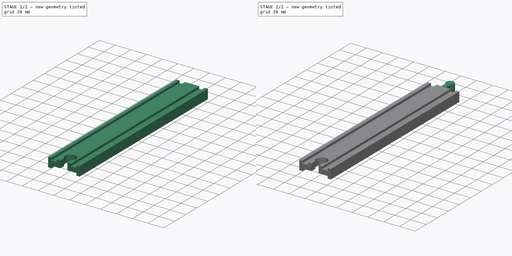
[diagram: build sequence overview — one tinted view per stage of 2, left to right]
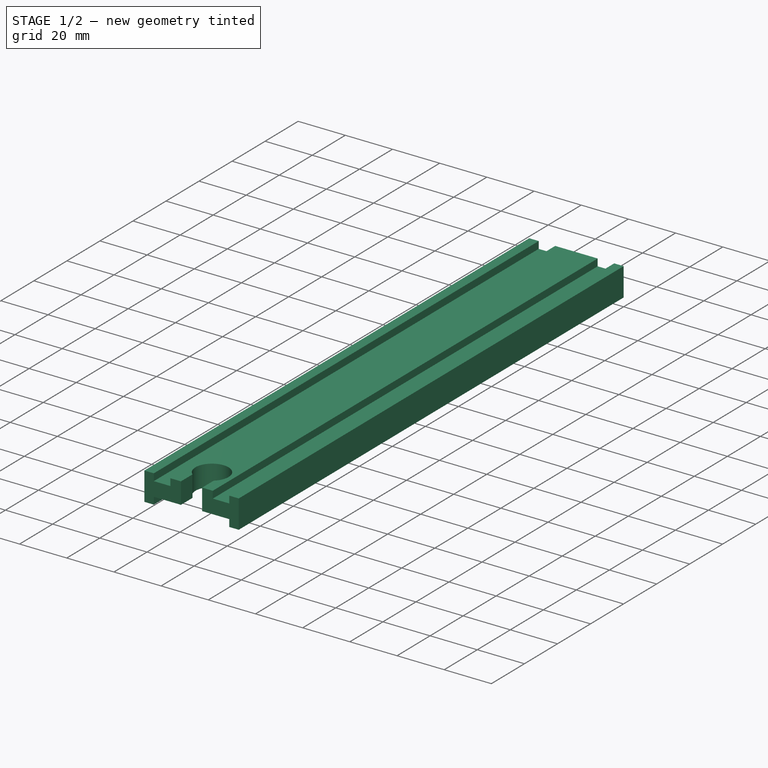
[diagram: stage 1 of 2 — iso view after this stage's code; geometry added in this stage tinted green]
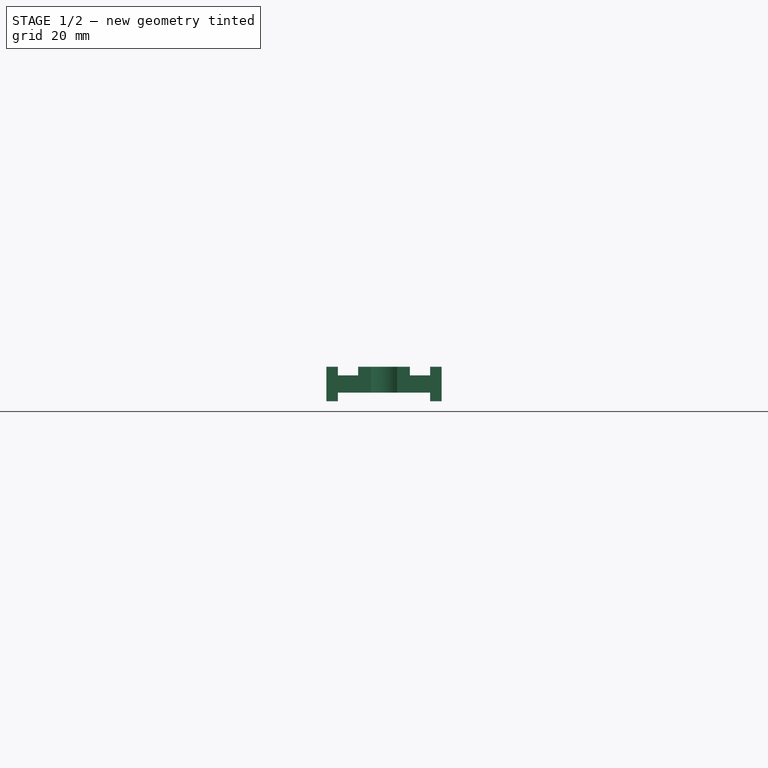
[diagram: stage 1 of 2 — front view after this stage's code; geometry added in this stage tinted green]
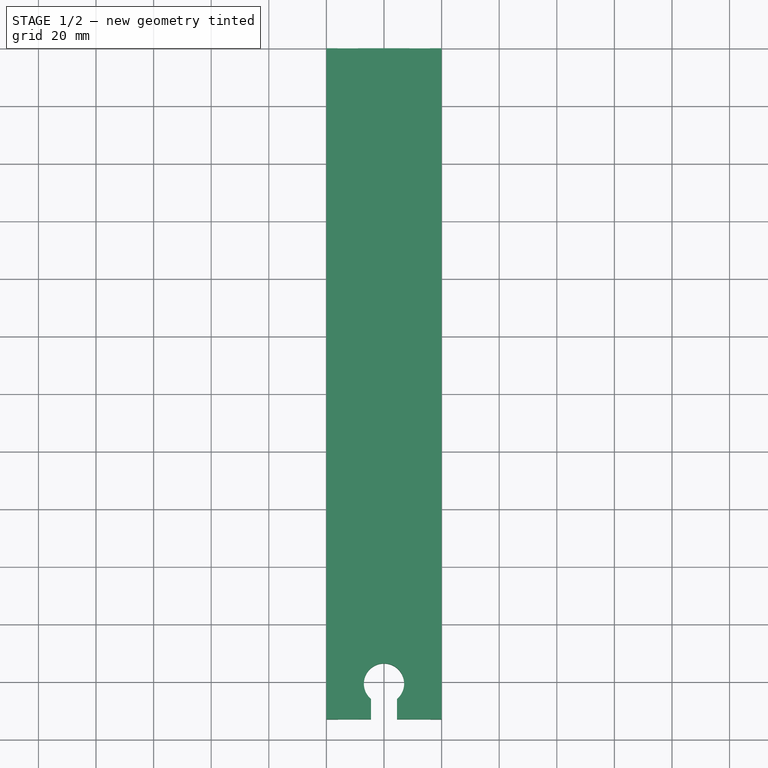
[diagram: stage 1 of 2 — top view after this stage's code; geometry added in this stage tinted green]
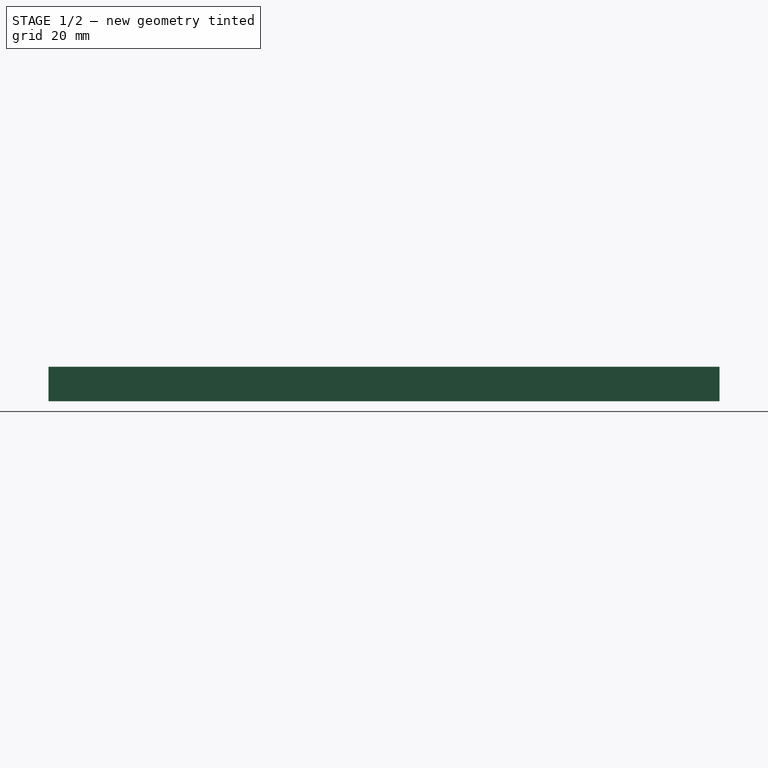
[diagram: stage 1 of 2 — right view after this stage's code; geometry added in this stage tinted green]
FCSTD DOCUMENT  (FreeCAD 0.19R24291 (Git))
Label: 233mm stright mk2
License: All rights reserved
LicenseURL: http://en.wikipedia.org/wiki/All_rights_reserved
objects: PartDesign::ShapeBinder×4, Sketcher::SketchObject×3, PartDesign::Pad×2, PartDesign::Body×2, PartDesign::Point×1, PartDesign::Pocket×1
note: 16 computed .brp shape members not serialized (recipe doc carries the construction recipe); baked Part::Feature solids carry a one-line shape summary decoded from their .brp

FEATURE [Sketcher::SketchObject] Sketch
  FullyConstrained = true
  MapMode = 5
  Placement = pos=(0,0,0) rot=(1,0,0;1.5708rad)
  sketch-geometry (29):
    g0: LineSegment StartX=-20 StartY=6 StartZ=0 EndX=-20 EndY=-6 EndZ=0
    g1: LineSegment StartX=-20 StartY=-6 StartZ=0 EndX=-16 EndY=-6 EndZ=0
    g2: LineSegment StartX=-16 StartY=-6 StartZ=0 EndX=-16 EndY=-3 EndZ=0
    g3: LineSegment StartX=-16 StartY=-3 StartZ=0 EndX=-9 EndY=-3 EndZ=0
    g4: LineSegment StartX=-9 StartY=-3 StartZ=0 EndX=-9 EndY=-6 EndZ=0
    g5: LineSegment StartX=-9 StartY=-6 StartZ=0 EndX=9 EndY=-6 EndZ=0
    g6: LineSegment StartX=9 StartY=-6 StartZ=0 EndX=9 EndY=-3 EndZ=0
    g7: LineSegment StartX=9 StartY=-3 StartZ=0 EndX=16 EndY=-3 EndZ=0
    g8: LineSegment StartX=16 StartY=-3 StartZ=0 EndX=16 EndY=-6 EndZ=0
    g9: LineSegment StartX=16 StartY=-6 StartZ=0 EndX=20 EndY=-6 EndZ=0
    g10: LineSegment StartX=20 StartY=-6 StartZ=0 EndX=20 EndY=6 EndZ=0
    g11: LineSegment StartX=20 StartY=6 StartZ=0 EndX=16 EndY=6 EndZ=0
    g12: LineSegment StartX=16 StartY=6 StartZ=0 EndX=16 EndY=3 EndZ=0
    g13: LineSegment StartX=16 StartY=3 StartZ=0 EndX=9 EndY=3 EndZ=0
    g14: LineSegment StartX=9 StartY=3 StartZ=0 EndX=9 EndY=6 EndZ=0
    g15: LineSegment StartX=9 StartY=6 StartZ=0 EndX=-9 EndY=6 EndZ=0
    g16: LineSegment StartX=-9 StartY=6 StartZ=0 EndX=-9 EndY=3 EndZ=0
    g17: LineSegment StartX=-9 StartY=3 StartZ=0 EndX=-16 EndY=3 EndZ=0
    g18: LineSegment StartX=-16 StartY=3 StartZ=0 EndX=-16 EndY=6 EndZ=0
    g19: LineSegment StartX=-16 StartY=6 StartZ=0 EndX=-20 EndY=6 EndZ=0
    g20: LineSegment StartX=9 StartY=6 StartZ=0 EndX=16 EndY=6 EndZ=0
    g21: LineSegment StartX=-9 StartY=6 StartZ=0 EndX=-16 EndY=6 EndZ=0
    g22: LineSegment StartX=-16 StartY=-6 StartZ=0 EndX=-9 EndY=-6 EndZ=0
    g23: LineSegment StartX=16 StartY=-3 StartZ=0 EndX=16 EndY=3 EndZ=0
    g24: LineSegment StartX=-9 StartY=3 StartZ=0 EndX=9 EndY=3 EndZ=0
    g25: LineSegment StartX=-9 StartY=-3 StartZ=0 EndX=9 EndY=-3 EndZ=0
    g26: LineSegment StartX=-20 StartY=6 StartZ=0 EndX=20 EndY=-6 EndZ=0
    g27: LineSegment StartX=-20 StartY=-6 StartZ=0 EndX=20 EndY=6 EndZ=0
    g28: LineSegment StartX=-9 StartY=-3 StartZ=0 EndX=9 EndY=-3 EndZ=0
  constraints (78):
    c: Coincident(g1,g0)
    c: Horizontal(g1)
    c: Coincident(g2,g1)
    c: Vertical(g2)
    c: Coincident(g3,g2)
    c: Horizontal(g3)
    c: Coincident(g4,g3)
    c: Coincident(g5,g4)
    c: Horizontal(g5)
    c: Coincident(g6,g5)
    c: Coincident(g7,g6)
    c: Horizontal(g7)
    c: Coincident(g8,g7)
    c: Coincident(g9,g8)
    c: Coincident(g10,g9)
    c: Coincident(g11,g10)
    c: Coincident(g12,g11)
    c: Coincident(g13,g12)
    c: Coincident(g14,g13)
    c: Vertical(g14)
    c: Coincident(g15,g14)
    c: Coincident(g16,g15)
    c: Coincident(g17,g16)
    c: Horizontal(g17)
    c: Coincident(g18,g17)
    c: Vertical(g18)
    c: Coincident(g19,g18)
    c: Coincident(g19,g0)
    c: Horizontal(g19)
    c: Horizontal(g15)
    c: Horizontal(g13)
    c: Horizontal(g11)
    c: Horizontal(g9)
    c: Vertical(g0)
    c: Vertical(g16)
    c: Vertical(g12)
    c: Vertical(g10)
    c: Vertical(g8)
    c: Vertical(g6)
    c: Vertical(g4)
    c: Equal(g0,g10)
    c: Equal(g3,g17)
    c: Equal(g3,g13)
    c: Equal(g3,g7)
    c: Equal(g5,g15)
    c: DistanceY(g0,g0) = 12
    c: DistanceX(g1,g1) = 4
    c: Equal(g1,g9)
    c: DistanceX(g3,g3) = 7
    c: DistanceX(g5,g5) = 18
    c: Coincident(g20,g14)
    c: Coincident(g20,g11)
    c: Coincident(g21,g15)
    c: Coincident(g21,g18)
    c: Coincident(g22,g1)
    c: Coincident(g22,g4)
    c: Horizontal(g22)
    c: Horizontal(g21)
    c: Horizontal(g20)
    c: Coincident(g23,g7)
    c: Coincident(g23,g12)
    c: Vertical(g23)
    c: DistanceY(g8,g7) = 3
    c: DistanceY(g7,g12) = 6
    c: Coincident(g24,g16)
    c: Coincident(g24,g13)
    c: Horizontal(g24)
    c: Coincident(g25,g3)
    c: Coincident(g25,g6)
    c: Horizontal(g25)
    c: Coincident(g26,g0)
    c: Coincident(g26,g9)
    c: Coincident(g27,g0)
    c: Coincident(g27,g10)
    c: PointOnObject(g-1,g26)
    c: PointOnObject(g-1,g27)
    c: Coincident(g28,g3)
    c: Coincident(g28,g7)
FEATURE [PartDesign::Pad] Pad
  Direction = (1,1,1)
  Length = 233
  Length2 = 100
  Placement = pos=(0,0,0) rot=(1,0,0;1.5708rad)
  Profile = -> Sketch
  Type = 0
FEATURE [PartDesign::Body] Body001
  Group = -> [Sketch001,DatumPoint,CopyPad,CopyPad001,CopyPad002,CopyPad003,Pad001]
  Origin = -> Origin001
  Tip = -> Pad001
FEATURE [Sketcher::SketchObject] Sketch002
  ExternalGeometry = -> [Pad]
  FullyConstrained = true
  MapMode = 5
  Placement = pos=(0,2e-15,6) rot=(0,0,1;3.14159rad)
  Support = -> [Pad]
  sketch-geometry (6):
    g0: LineSegment StartX=-9 StartY=233 StartZ=0 EndX=-4.5 EndY=233 EndZ=0
    g1: LineSegment StartX=9 StartY=233 StartZ=0 EndX=4.5 EndY=233 EndZ=0
    g2: LineSegment StartX=-4.5 StartY=233 StartZ=0 EndX=4.5 EndY=233 EndZ=0
    g3: LineSegment StartX=4.5 StartY=233 StartZ=0 EndX=4.5 EndY=226 EndZ=0
    g4: LineSegment StartX=-4.5 StartY=233 StartZ=0 EndX=-4.5 EndY=226 EndZ=0
    g5: ArcOfCircle CenterX=-8.9e-15 CenterY=220.638 CenterZ=0 NormalX=0 NormalY=0 NormalZ=1 AngleXU=0 Radius=7 StartAngle=2.26902 EndAngle=7.15576
  constraints (17):
    c: Coincident(g0,g-3)
    c: PointOnObject(g0,g-3)
    c: Coincident(g1,g-3)
    c: PointOnObject(g1,g-3)
    c: Coincident(g2,g0)
    c: Coincident(g2,g1)
    c: Coincident(g3,g2)
    c: Vertical(g3)
    c: Coincident(g4,g2)
    c: Vertical(g4)
    c: Equal(g0,g1)
    c: Equal(g4,g3)
    c: Distance(g4) = 7
    c: Distance(g2) = 9
    c: Diameter(g5) = 14
    c: Coincident(g5,g4)
    c: Coincident(g5,g3)
FEATURE [PartDesign::Pocket] Pocket
  BaseFeature = -> Pad
  Length = 5
  Length2 = 100
  Placement = pos=(0,0,0) rot=(1,0,0;1.5708rad)
  Profile = -> Sketch002
  Type = 1
FEATURE [PartDesign::Body] Body
  Group = -> [Sketch,Pad,Sketch002,Pocket]
  Origin = -> Origin
  Tip = -> Pocket
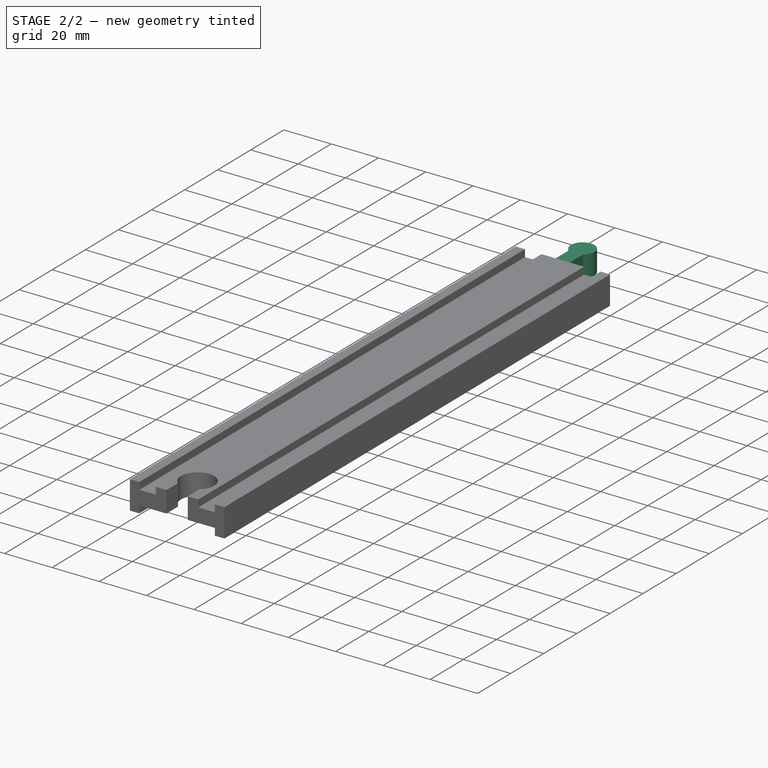
[diagram: stage 2 of 2 — iso view after this stage's code; geometry added in this stage tinted green]
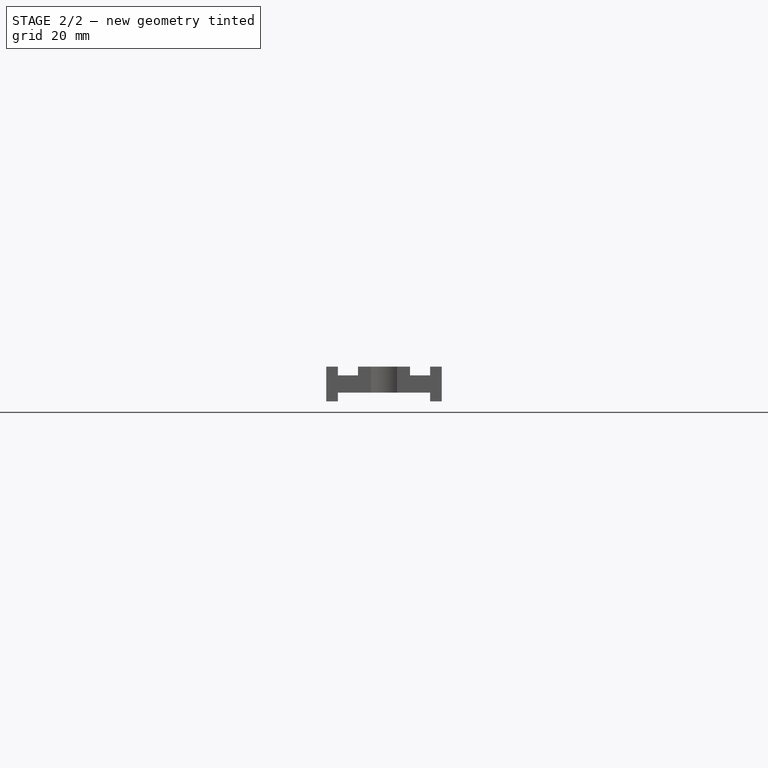
[diagram: stage 2 of 2 — front view after this stage's code; geometry added in this stage tinted green]
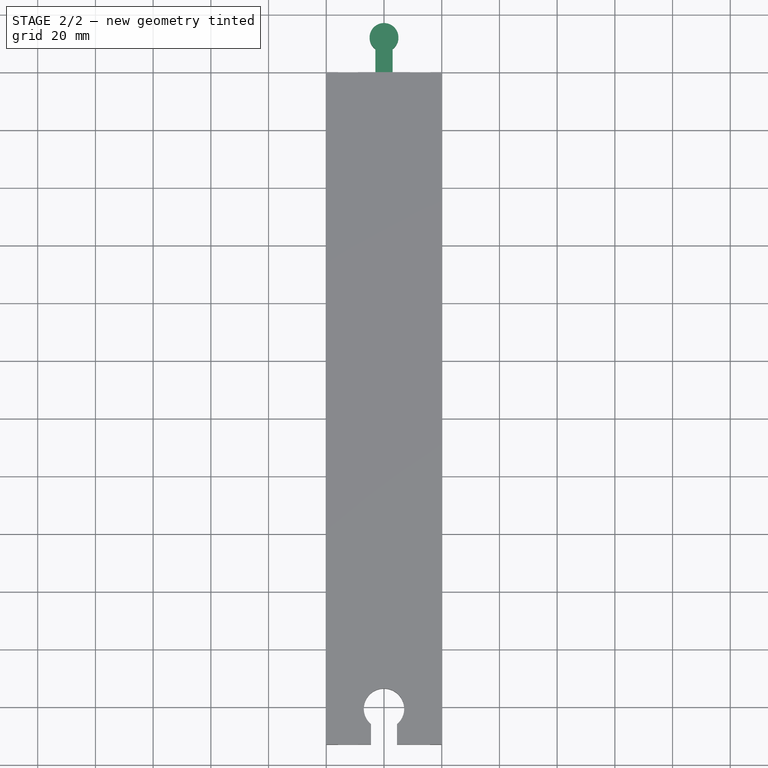
[diagram: stage 2 of 2 — top view after this stage's code; geometry added in this stage tinted green]
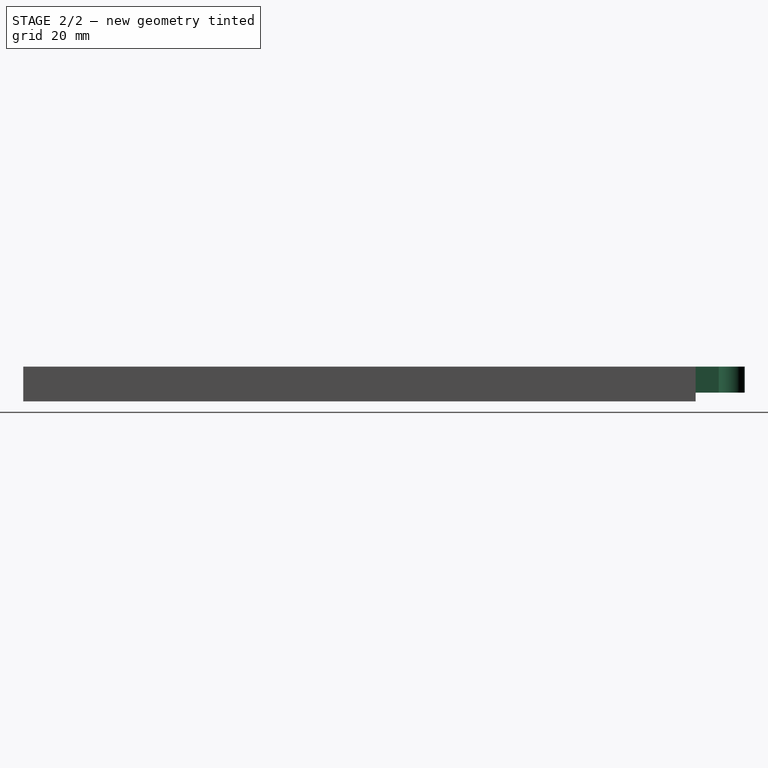
[diagram: stage 2 of 2 — right view after this stage's code; geometry added in this stage tinted green]
FEATURE [PartDesign::ShapeBinder] CopyPad
  Placement = pos=(0,0,0) rot=(1,0,0;1.5708rad)
  TraceSupport = false
FEATURE [Sketcher::SketchObject] Sketch001
  ExternalGeometry = -> [CopyPad]
  FullyConstrained = true
  MapMode = 5
  Support = -> [XY_Plane001]
  sketch-geometry (6):
    g0: LineSegment StartX=-9 StartY=2.7e-15 StartZ=0 EndX=-3 EndY=2.7e-15 EndZ=0
    g1: LineSegment StartX=9 StartY=2.7e-15 StartZ=0 EndX=3 EndY=2.7e-15 EndZ=0
    g2: LineSegment StartX=-3 StartY=2.7e-15 StartZ=0 EndX=3 EndY=2.7e-15 EndZ=0
    g3: LineSegment StartX=3 StartY=2.7e-15 StartZ=0 EndX=3 EndY=8 EndZ=0
    g4: LineSegment StartX=-3 StartY=2.7e-15 StartZ=0 EndX=-3 EndY=8 EndZ=0
    g5: ArcOfCircle CenterX=7.1e-13 CenterY=12 CenterZ=0 NormalX=0 NormalY=0 NormalZ=1 AngleXU=0 Radius=5 StartAngle=5.35589 EndAngle=10.3521
  constraints (17):
    c: Coincident(g0,g-3)
    c: PointOnObject(g0,g-3)
    c: Coincident(g1,g-3)
    c: PointOnObject(g1,g-3)
    c: Coincident(g2,g0)
    c: Coincident(g2,g1)
    c: Coincident(g3,g2)
    c: Coincident(g4,g2)
    c: Vertical(g4)
    c: Equal(g0,g1)
    c: Equal(g3,g4)
    c: Distance(g2) = 6
    c: Distance(g4) = 8
    c: Diameter(g5) = 10
    c: Vertical(g3)
    c: Coincident(g5,g3)
    c: Coincident(g5,g4)
FEATURE [PartDesign::ShapeBinder] CopyPad001
  Placement = pos=(0,0,0) rot=(1,0,0;1.5708rad)
  TraceSupport = false
FEATURE [PartDesign::ShapeBinder] CopyPad002
  Placement = pos=(0,0,0) rot=(1,0,0;1.5708rad)
  TraceSupport = false
FEATURE [PartDesign::ShapeBinder] CopyPad003
  Placement = pos=(0,0,0) rot=(1,0,0;1.5708rad)
  TraceSupport = false
FEATURE [PartDesign::Point] DatumPoint
  AttacherType = Attacher::AttachEnginePoint
  MapMode = 37
  Placement = pos=(0,4e-16,1.92857) rot=(0,0,1;0rad)
  Support = -> [CopyPad,CopyPad001,CopyPad002,CopyPad003]
FEATURE [PartDesign::Pad] Pad001
  Direction = (1,1,1)
  Length = 6
  Length2 = 3
  Profile = -> Sketch001
  Type = 4
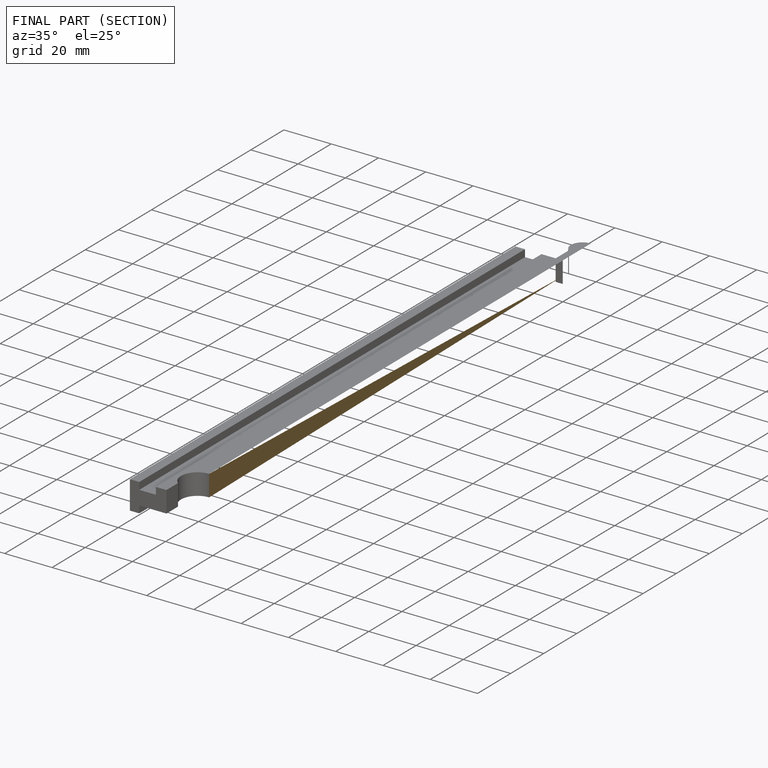
[diagram: finished part — half-section view (interior)]
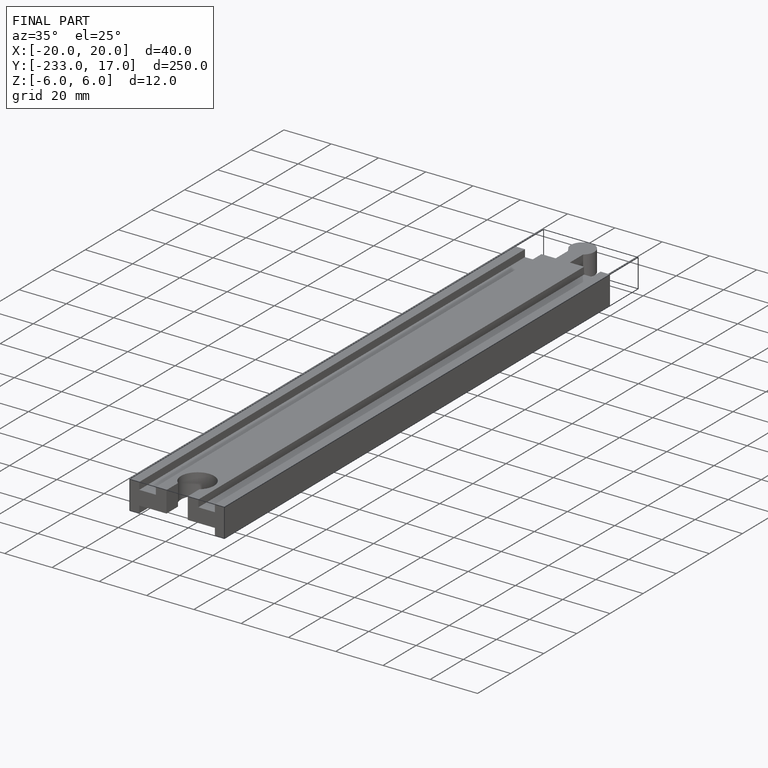
[diagram: finished part — iso view with bounding-box wireframe]
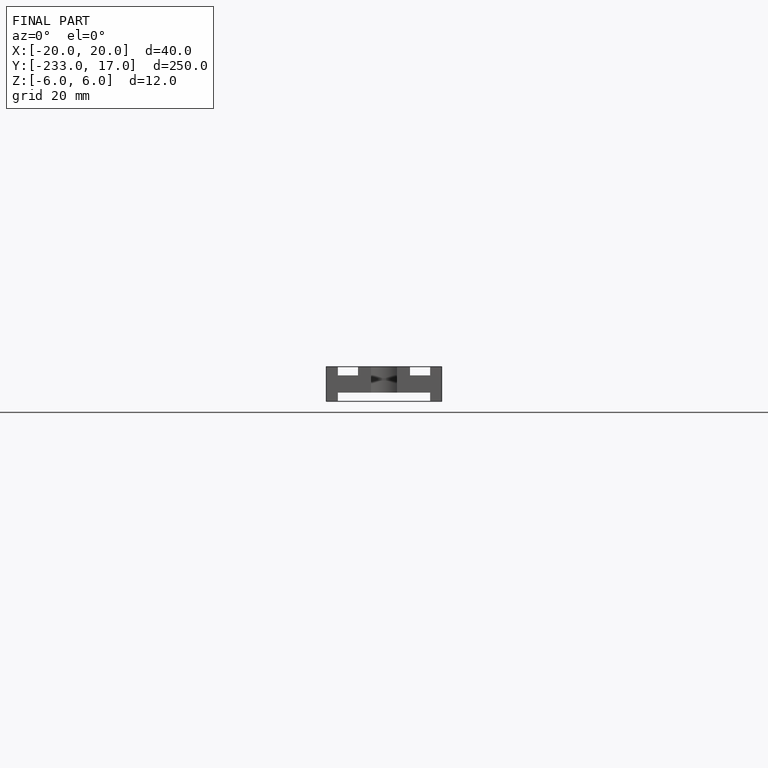
[diagram: finished part — front view with bounding-box wireframe]
